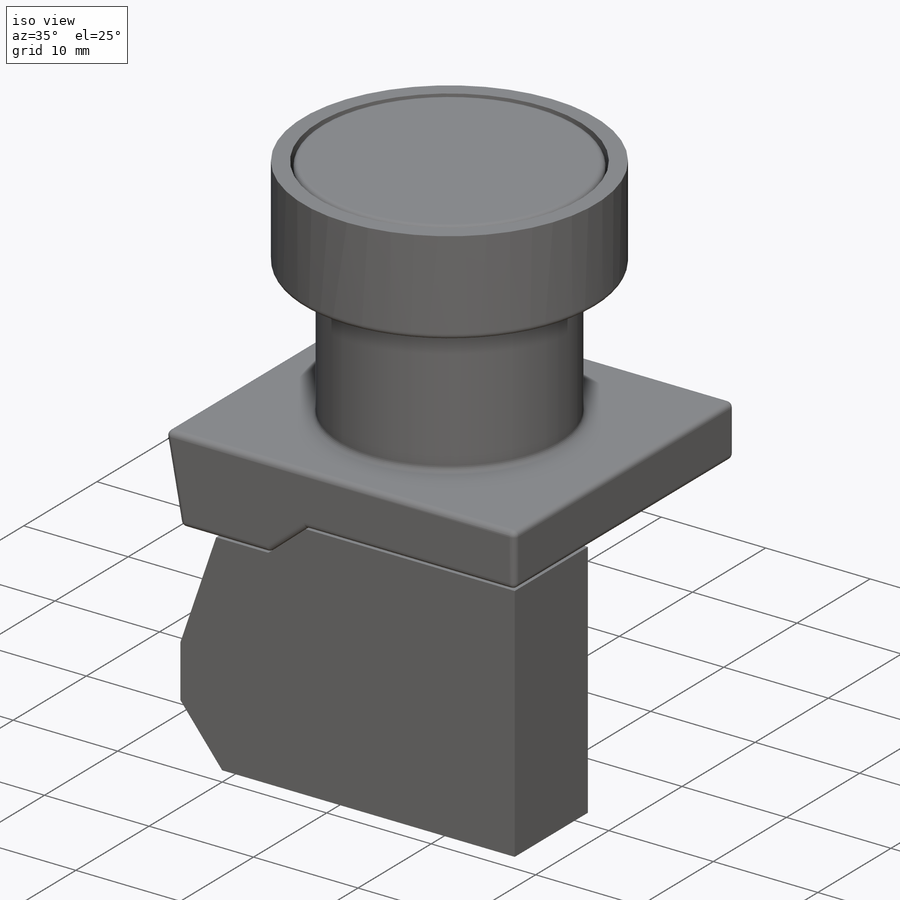
[diagram: iso view]
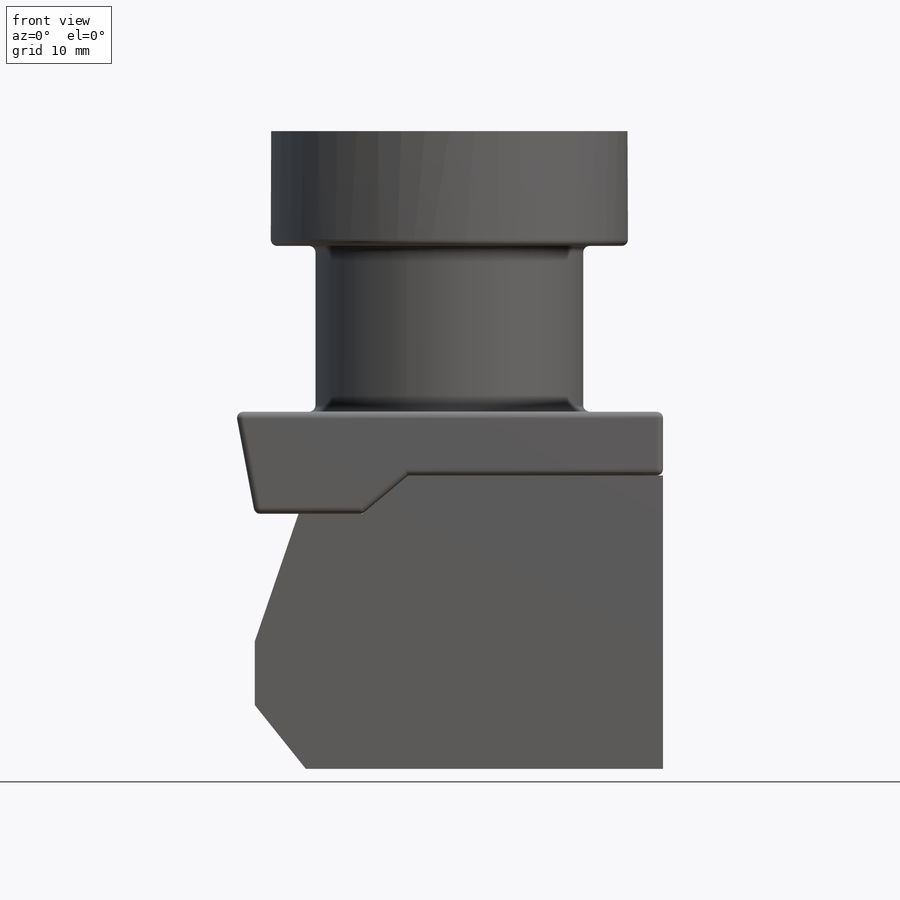
[diagram: front view]
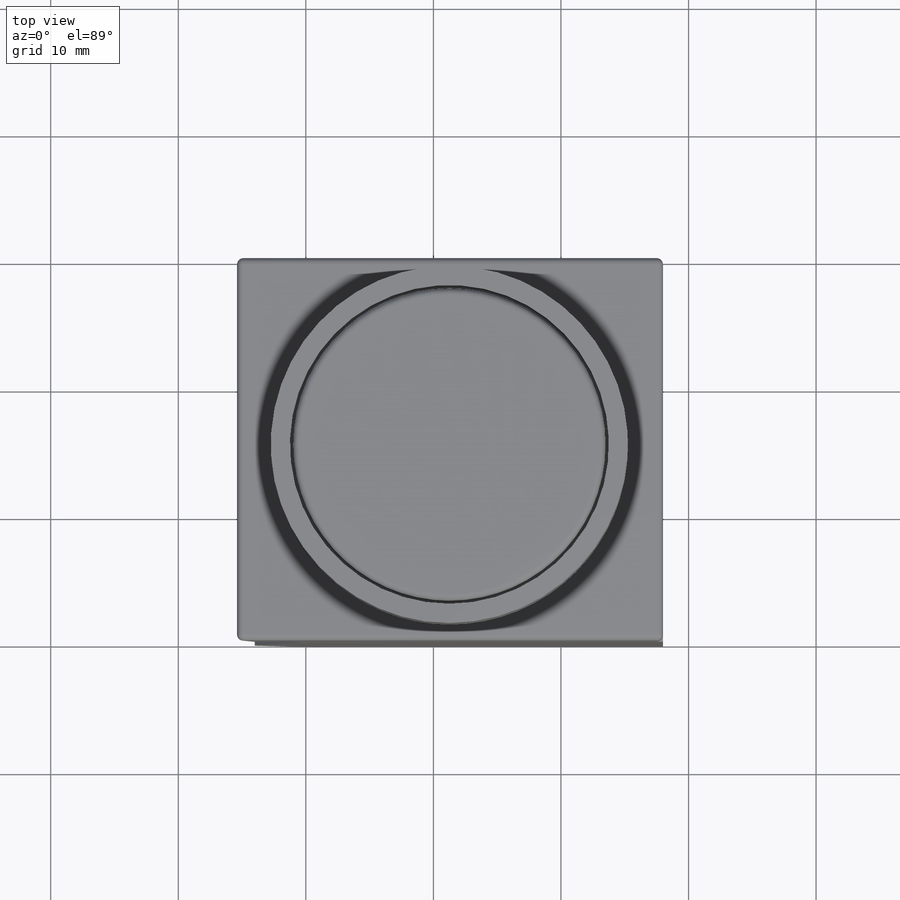
[diagram: top view]
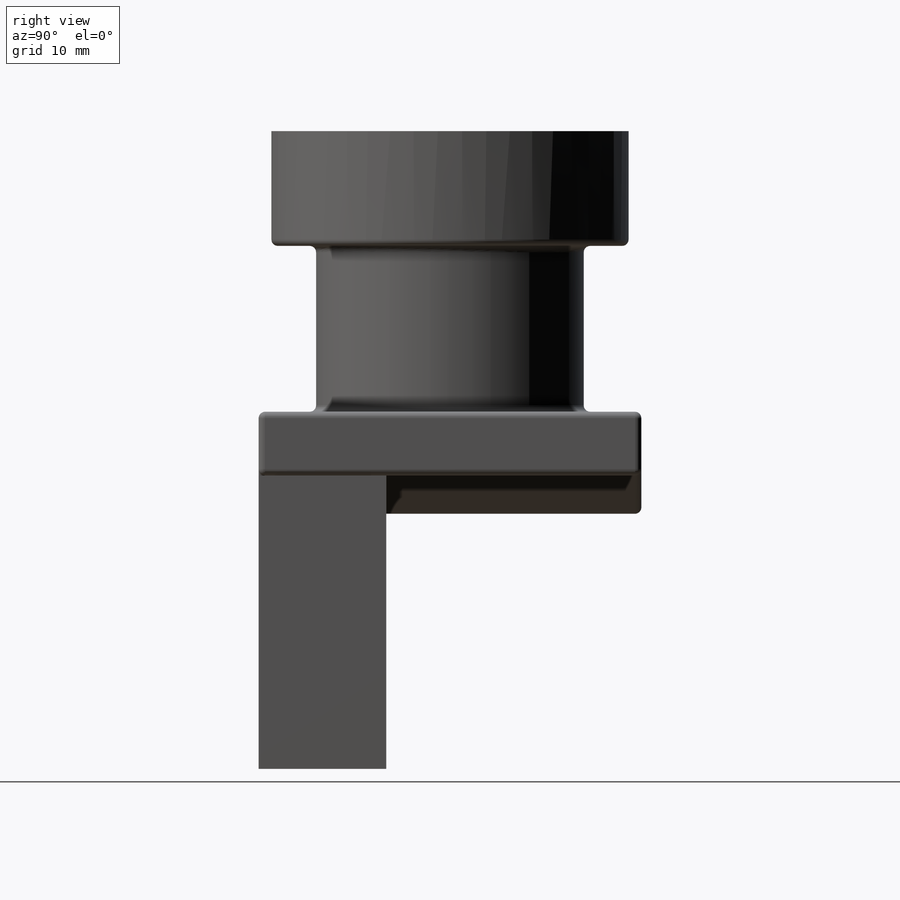
[diagram: right view]
SOLIDWORKS PART (.sldprt)
format: sldprt  version: not decoded by parser v0  size: 396,800 bytes
history: native  units: mm
features: sketch x6, extrude x5, fillet x2, material x1, cut_extrude x1 (+11 scaffold rows collapsed)
feature tree (26):
  scaffold x11  (default folders/planes/origin — collapsed)
  material  "Material <not specified>"
  sketch  "Sketch1"  dims[D1=32.0mm D2=23.0mm D3=20.0mm D4=5.0mm D5=5.0mm D6=5.0mm D7=20.0mm D8=28.0mm]
  extrude  "Boss-Extrude1"  Depth=10mm
  sketch  "Sketch3"  dims[D1=8.0mm D2=1.5mm]
  extrude  "Boss-Extrude2"  Depth=30mm
  sketch  "Sketch4"  dims[D1=21.0mm]
  extrude  "Boss-Extrude3"  Depth=13mm
  sketch  "Sketch5"  dims[D1=28.0mm]
  extrude  "Boss-Extrude4"  Depth=9mm
  sketch  "Sketch6"  dims[D1=25.0mm]
  cut_extrude  "Cut-Extrude1"  Depth=5mm
  sketch  "Sketch7"  dims[D1=24.5mm]
  extrude  "Boss-Extrude5"  Depth=5mm
  fillet  "Fillet1"  Radius=0.5mm
  fillet  "Fillet2"  Radius=0.5mm
decode coverage: 14 of 14 modeling features carry decoded parameters
note: suppression state not decoded; provenance and decode notes live in map.json
